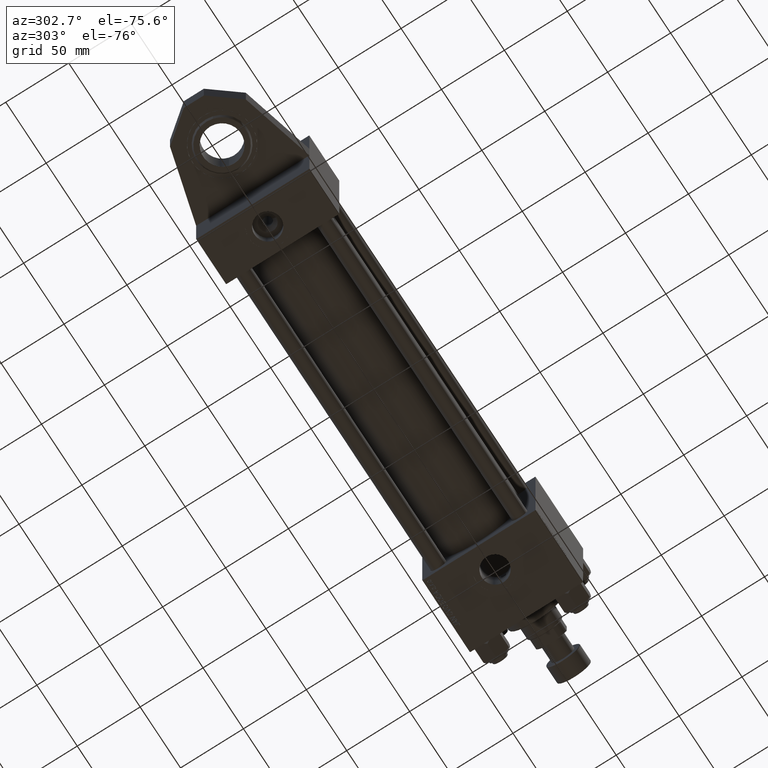
[diagram: clean part render]
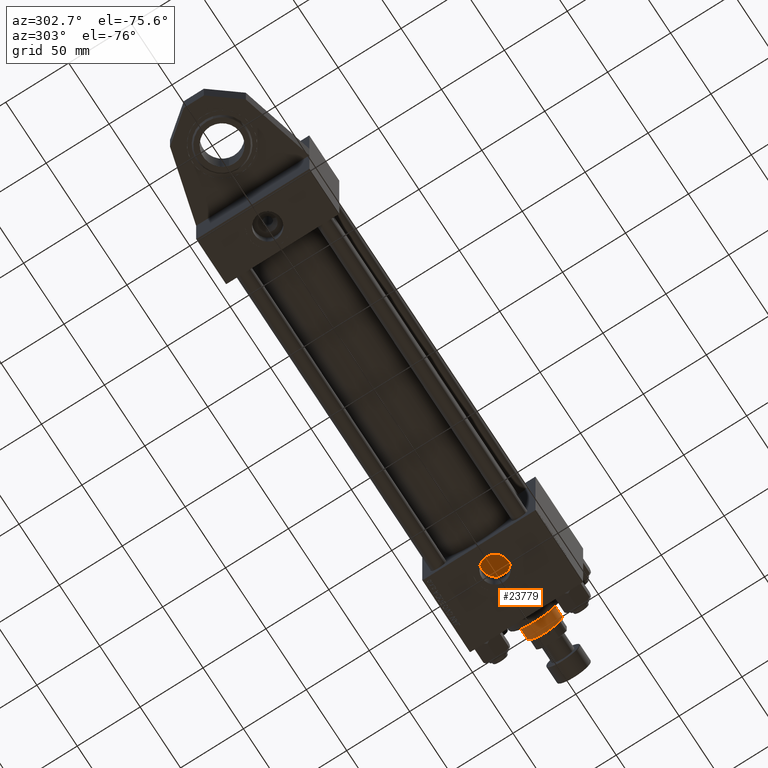
[diagram: same view with one face highlighted and labeled with its STEP entity id]
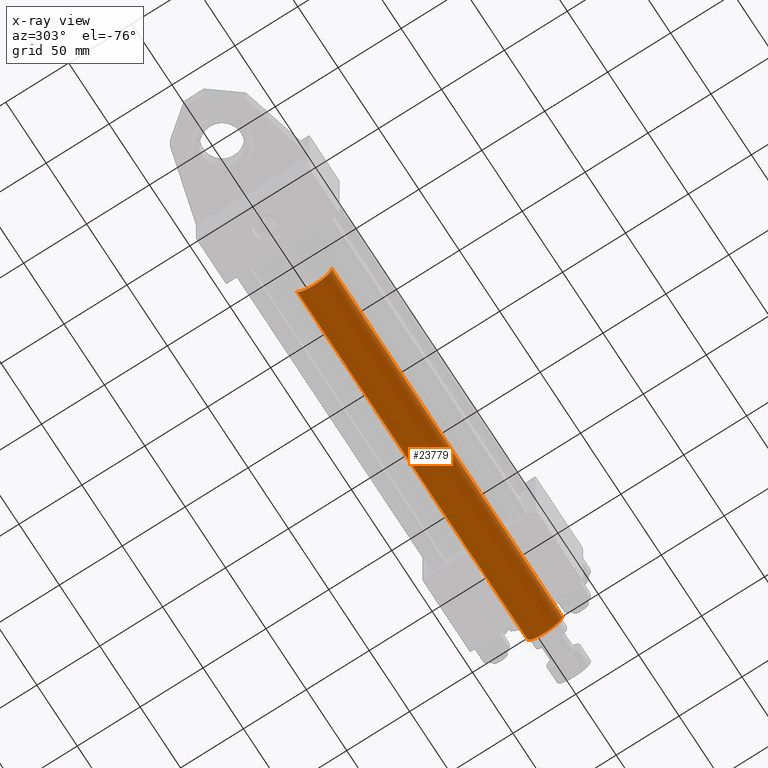
[diagram: x-ray of the same camera — body ghosted, the highlighted face saturated]
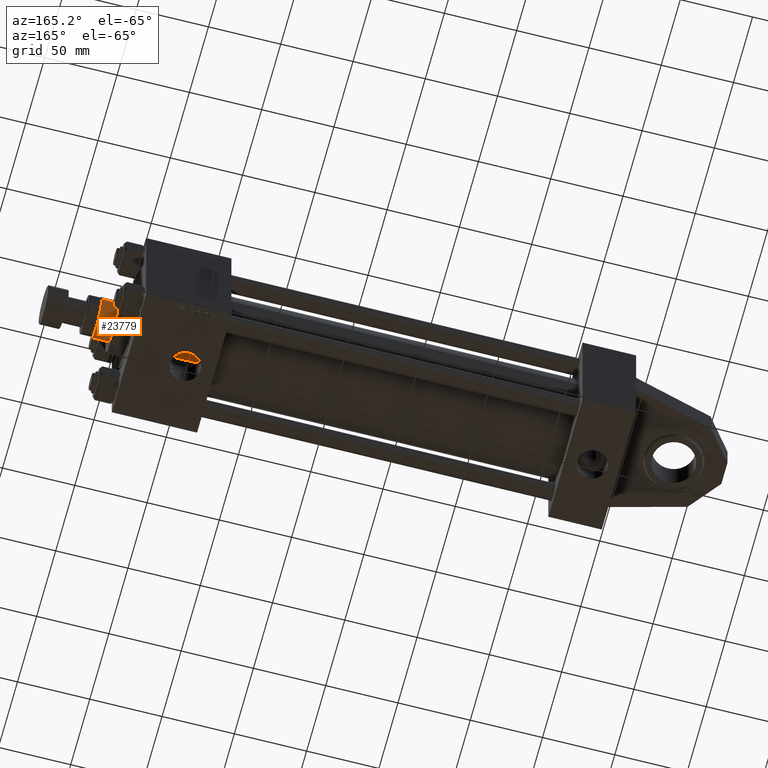
[diagram: same view with one face highlighted and labeled with its STEP entity id]
A machine part, auxiliary view. The second image highlights one B-rep face of the part: STEP entity #23779.
The next image is the same camera in x-ray: the body ghosted, the highlighted face saturated — about 0% of this face is hidden behind the body in this view.
A second angle (auxiliary view) of the same face is appended — the face is thin or edge-on in the first view.
In plain terms, the highlighted cylindrical surface (edge-blend (fillet) strip) has radius 14 mm, axis along (-1, 0, 0).
Its self-contained STEP definition (entity closure, byte-faithful):
#2068 = VECTOR ( 'NONE', #11577, 1000.000000000000000 ) ;
#3279 = VERTEX_POINT ( 'NONE', #9626 ) ;
#5512 = DIRECTION ( 'NONE',  ( -0.000000000000000000, -0.000000000000000000, -1.000000000000000000 ) ) ;
#5580 = CARTESIAN_POINT ( 'NONE',  ( 0.000000000000000000, 0.000000000000000000, 39.00000000000000000 ) ) ;
#5712 = CARTESIAN_POINT ( 'NONE',  ( 0.000000000000000000, 0.000000000000000000, 324.4999999999999432 ) ) ;
#7808 = EDGE_CURVE ( 'NONE', #24553, #8282, #33975, .T. ) ;
#8282 = VERTEX_POINT ( 'NONE', #13372 ) ;
#9626 = CARTESIAN_POINT ( 'NONE',  ( 14.00000000000000178, 1.714505518806294835E-15, 324.4999999999999432 ) ) ;
#10670 = ORIENTED_EDGE ( 'NONE', *, *, #48747, .F. ) ;
#11577 = DIRECTION ( 'NONE',  ( -0.000000000000000000, -0.000000000000000000, -1.000000000000000000 ) ) ;
#12055 = CARTESIAN_POINT ( 'NONE',  ( 14.00000000000000178, 1.714505518806294835E-15, 324.9999999999999432 ) ) ;
#12205 = CARTESIAN_POINT ( 'NONE',  ( 14.00000000000000178, 1.714505518806294835E-15, 39.00000000000000000 ) ) ;
#13035 = DIRECTION ( 'NONE',  ( 0.000000000000000000, 0.000000000000000000, 1.000000000000000000 ) ) ;
#13372 = CARTESIAN_POINT ( 'NONE',  ( -14.00000000000000178, 0.000000000000000000, 39.00000000000000000 ) ) ;
#13544 = AXIS2_PLACEMENT_3D ( 'NONE', #5580, #13035, #29327 ) ;
#14168 = AXIS2_PLACEMENT_3D ( 'NONE', #5712, #47030, #35045 ) ;
#14406 = CARTESIAN_POINT ( 'NONE',  ( -14.00000000000000178, 0.000000000000000000, 324.4999999999999432 ) ) ;
#16845 = LINE ( 'NONE', #12055, #20637 ) ;
#17384 = AXIS2_PLACEMENT_3D ( 'NONE', #38335, #5512, #43108 ) ;
#17625 = ORIENTED_EDGE ( 'NONE', *, *, #7808, .T. ) ;
#19573 = EDGE_CURVE ( 'NONE', #3279, #24553, #16845, .T. ) ;
#20637 = VECTOR ( 'NONE', #49117, 1000.000000000000000 ) ;
#21820 = CIRCLE ( 'NONE', #14168, 14.00000000000000178 ) ;
#22845 = CYLINDRICAL_SURFACE ( 'NONE', #17384, 14.00000000000000178 ) ;
#23779 = ADVANCED_FACE ( 'NONE', ( #50833 ), #22845, .T. ) ;
#24553 = VERTEX_POINT ( 'NONE', #12205 ) ;
#28280 = ORIENTED_EDGE ( 'NONE', *, *, #28531, .T. ) ;
#28531 = EDGE_CURVE ( 'NONE', #44150, #3279, #21820, .T. ) ;
#29327 = DIRECTION ( 'NONE',  ( 1.000000000000000000, 0.000000000000000000, 0.000000000000000000 ) ) ;
#31594 = LINE ( 'NONE', #39871, #2068 ) ;
#33975 = CIRCLE ( 'NONE', #13544, 14.00000000000000178 ) ;
#35045 = DIRECTION ( 'NONE',  ( 1.000000000000000000, 0.000000000000000000, 0.000000000000000000 ) ) ;
#38220 = ORIENTED_EDGE ( 'NONE', *, *, #19573, .T. ) ;
#38335 = CARTESIAN_POINT ( 'NONE',  ( 0.000000000000000000, 0.000000000000000000, 324.9999999999999432 ) ) ;
#39871 = CARTESIAN_POINT ( 'NONE',  ( -14.00000000000000178, 0.000000000000000000, 324.9999999999999432 ) ) ;
#43108 = DIRECTION ( 'NONE',  ( -1.000000000000000000, 0.000000000000000000, 0.000000000000000000 ) ) ;
#44150 = VERTEX_POINT ( 'NONE', #14406 ) ;
#47030 = DIRECTION ( 'NONE',  ( 0.000000000000000000, 0.000000000000000000, -1.000000000000000000 ) ) ;
#48720 = EDGE_LOOP ( 'NONE', ( #28280, #38220, #17625, #10670 ) ) ;
#48747 = EDGE_CURVE ( 'NONE', #44150, #8282, #31594, .T. ) ;
#49117 = DIRECTION ( 'NONE',  ( -0.000000000000000000, -0.000000000000000000, -1.000000000000000000 ) ) ;
#50833 = FACE_OUTER_BOUND ( 'NONE', #48720, .T. ) ;